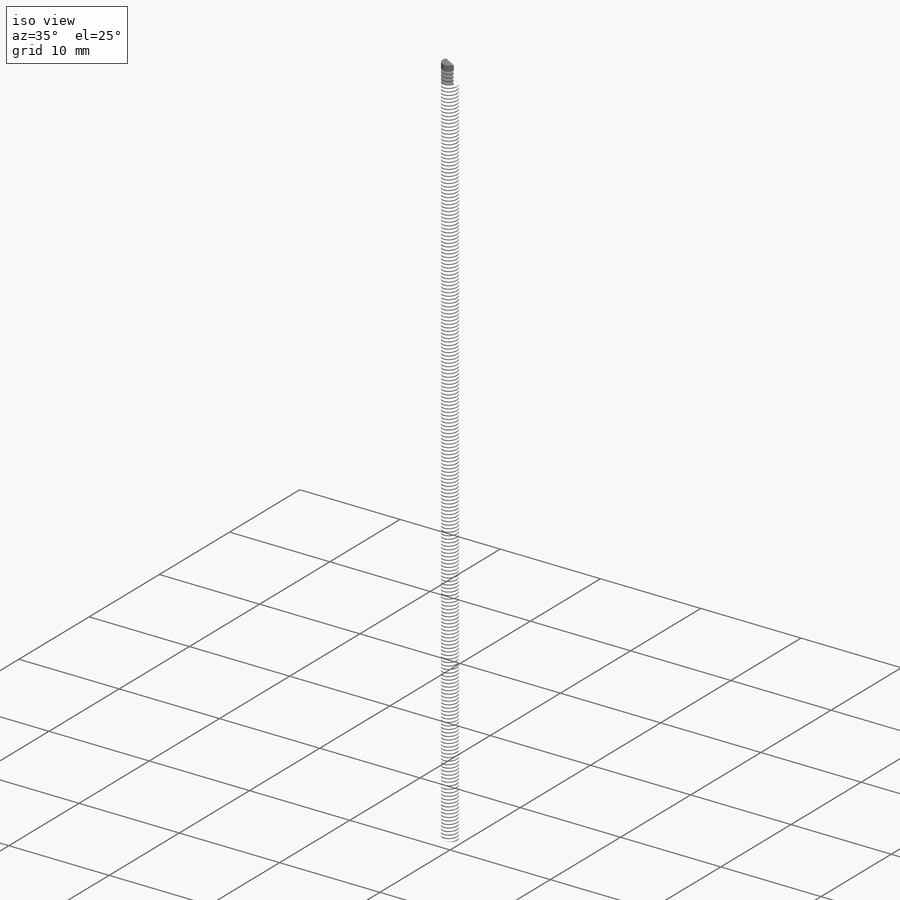
[diagram: iso view]
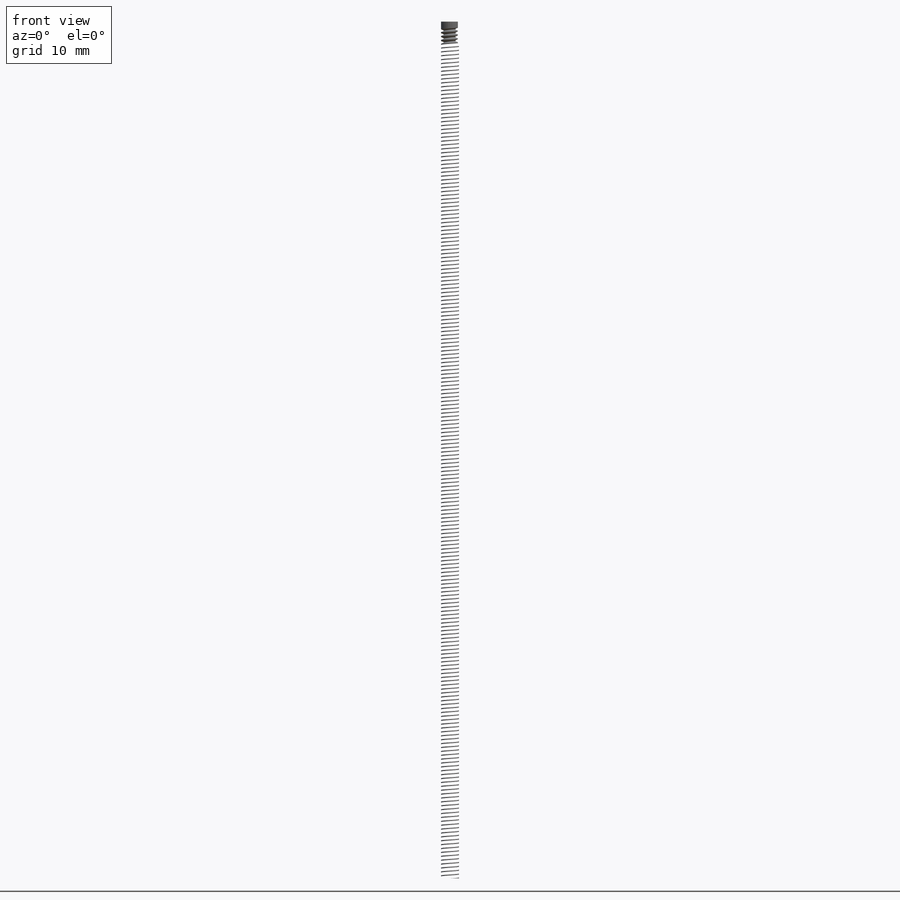
[diagram: front view]
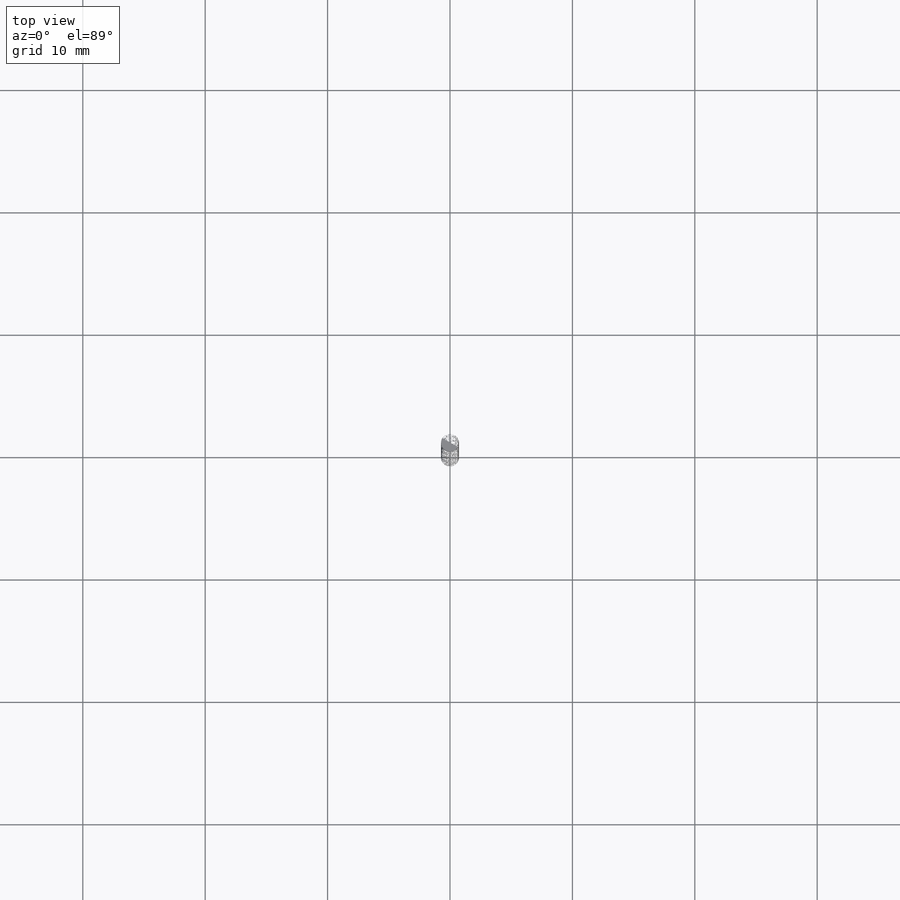
[diagram: top view]
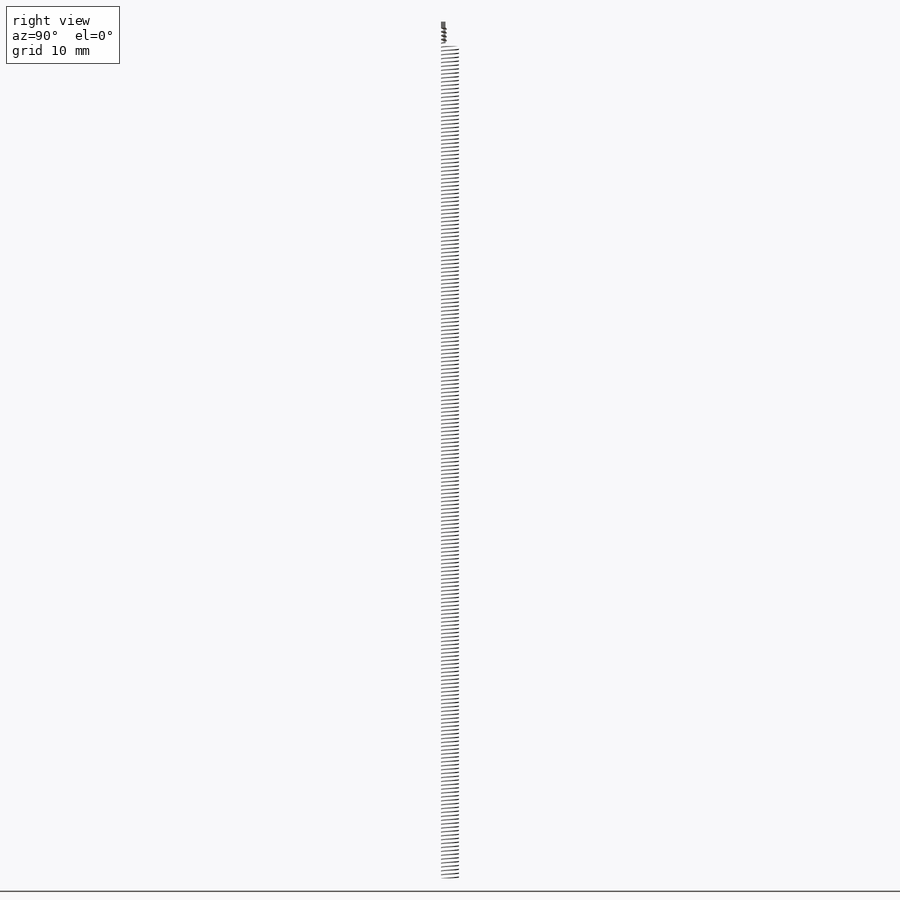
[diagram: right view]
SOLIDWORKS PART (.sldprt)
format: sldprt  version: not decoded by parser v0  size: 5,252,096 bytes
history: native  units: mm
features: sketch x4, material x1, extrude x1, helix x1, sweep x1, cut_extrude x1 (+12 scaffold rows collapsed)
feature tree (21):
  scaffold x12  (default folders/planes/origin — collapsed)
  material  "Material <not specified>"
  sketch  "Sketch1"  dims[D1=~1.47066mm]
  extrude  "Boss-Extrude1"  Depth=70mm
  sketch  "Sketch7"
  helix  "Helix/Spiral1"  Pitch=69.85mm
  sketch  "Sketch4"  dims[c1.D1=~0.238125mm c1.D2=~0.198437mm c1.D3=~0.079375mm c2.D2=~0.198438mm]
  sweep  "Cut-Sweep2"
  sketch  "Sketch2"
  cut_extrude  "Cut-Extrude1"  Depth=2mm
decode coverage: 5 of 8 modeling features carry decoded parameters
note: ~ marks probable driven/reference dimensions
note: suppression state not decoded; provenance and decode notes live in map.json
